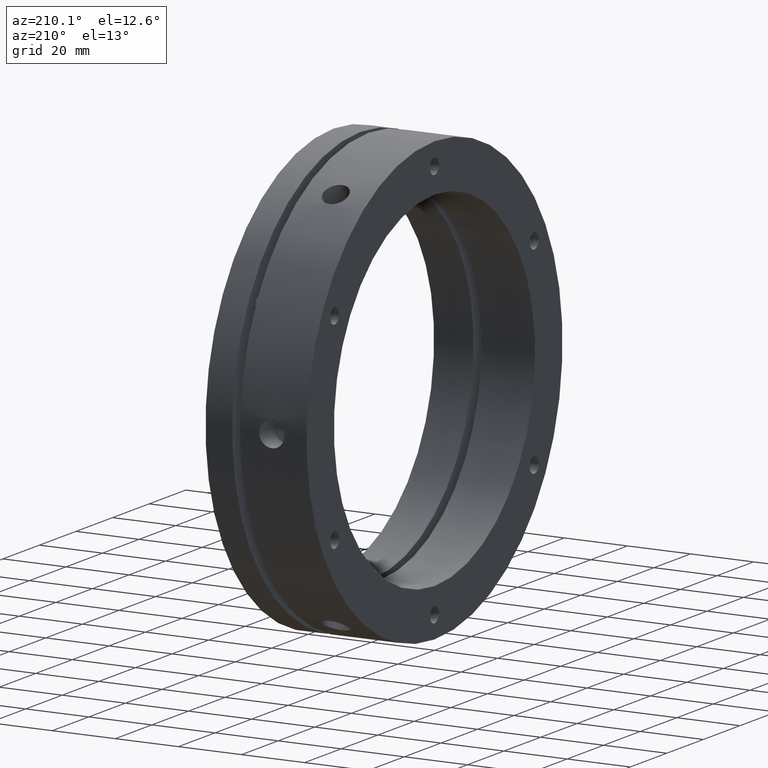
[diagram: clean part render]
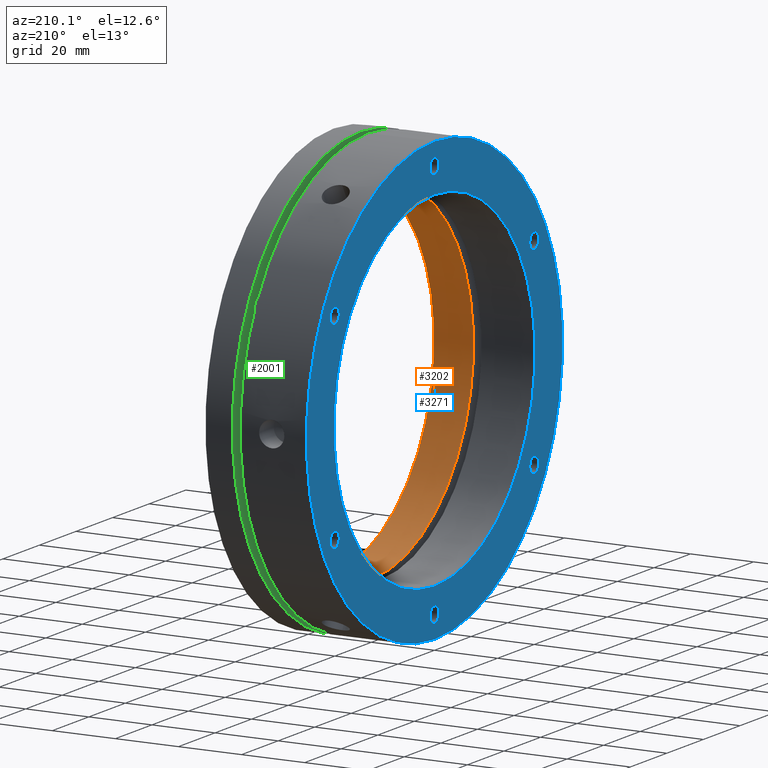
[diagram: same view with three faces highlighted in distinct colors, each labeled with its STEP entity id]
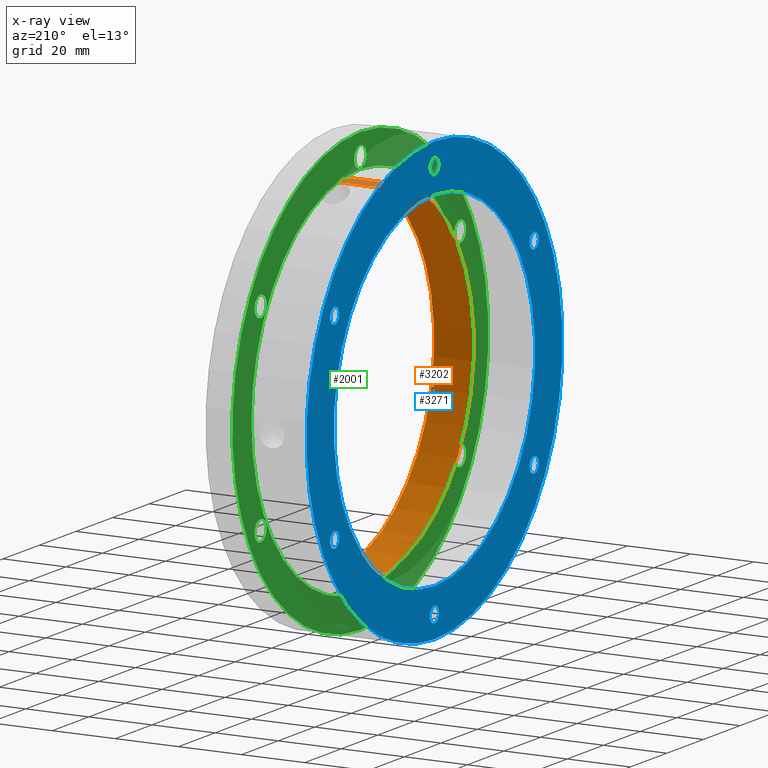
[diagram: x-ray of the same camera — body ghosted, the three highlighted faces saturated]
A machine part, auxiliary view with three faces highlighted in distinct colors.
The next image is the same camera in x-ray (body ghosted, the three faces saturated) — at least one of them is partly hidden behind the body in this view.
Their STEP definitions:

[orange] entity #3202 — the highlighted cylindrical surface (partial cylindrical patch) has radius 55 mm, axis along (1, 0, 0).
#137 = EDGE_LOOP ( 'NONE', ( #1511, #1510, #1509, #1508 ) ) ;
#521 = AXIS2_PLACEMENT_3D ( 'NONE', #4110, #4108, #4106 ) ;
#780 = AXIS2_PLACEMENT_3D ( 'NONE', #2088, #2089, #2090 ) ;
#782 = AXIS2_PLACEMENT_3D ( 'NONE', #4627, #4628, #4629 ) ;
#839 = CIRCLE ( 'NONE', #780, 55.00000000000000000 ) ;
#918 = LINE ( 'NONE', #4620, #966 ) ;
#951 = VECTOR ( 'NONE', #4624, 1000.000000000000000 ) ;
#958 = CIRCLE ( 'NONE', #782, 55.00000000000000000 ) ;
#966 = VECTOR ( 'NONE', #4619, 1000.000000000000000 ) ;
#980 = LINE ( 'NONE', #4626, #951 ) ;
#1073 = CYLINDRICAL_SURFACE ( 'NONE', #521, 55.00000000000000000 ) ;
#1128 = FACE_OUTER_BOUND ( 'NONE', #137, .T. ) ;
#1508 = ORIENTED_EDGE ( 'NONE', *, *, #3500, .F. ) ;
#1509 = ORIENTED_EDGE ( 'NONE', *, *, #3499, .F. ) ;
#1510 = ORIENTED_EDGE ( 'NONE', *, *, #3498, .T. ) ;
#1511 = ORIENTED_EDGE ( 'NONE', *, *, #3576, .T. ) ;
#1783 = VERTEX_POINT ( 'NONE', #3829 ) ;
#1784 = VERTEX_POINT ( 'NONE', #3830 ) ;
#1788 = VERTEX_POINT ( 'NONE', #3834 ) ;
#1789 = VERTEX_POINT ( 'NONE', #3835 ) ;
#2088 = CARTESIAN_POINT ( 'NONE',  ( 19.49999999999999600, 0.0000000000000000000, 0.0000000000000000000 ) ) ;
#2089 = DIRECTION ( 'NONE',  ( -1.000000000000000000, -0.0000000000000000000, -0.0000000000000000000 ) ) ;
#2090 = DIRECTION ( 'NONE',  ( 0.0000000000000000000, 0.0000000000000000000, -1.000000000000000000 ) ) ;
#3202 = ADVANCED_FACE ( 'NONE', ( #1128 ), #1073, .F. ) ;
#3498 = EDGE_CURVE ( 'NONE', #1788, #1783, #918, .T. ) ;
#3499 = EDGE_CURVE ( 'NONE', #1784, #1783, #958, .T. ) ;
#3500 = EDGE_CURVE ( 'NONE', #1789, #1784, #980, .T. ) ;
#3576 = EDGE_CURVE ( 'NONE', #1789, #1788, #839, .T. ) ;
#3829 = CARTESIAN_POINT ( 'NONE',  ( 31.99999999999998600, 6.735557395310442600E-015, 55.00000000000000000 ) ) ;
#3830 = CARTESIAN_POINT ( 'NONE',  ( 31.99999999999998600, 0.0000000000000000000, -55.00000000000000000 ) ) ;
#3834 = CARTESIAN_POINT ( 'NONE',  ( 19.49999999999999600, 6.735557395310442600E-015, 55.00000000000000000 ) ) ;
#3835 = CARTESIAN_POINT ( 'NONE',  ( 19.49999999999999600, 0.0000000000000000000, -55.00000000000000000 ) ) ;
#4106 = DIRECTION ( 'NONE',  ( 0.0000000000000000000, 0.0000000000000000000, -1.000000000000000000 ) ) ;
#4108 = DIRECTION ( 'NONE',  ( 1.000000000000000000, 0.0000000000000000000, 0.0000000000000000000 ) ) ;
#4110 = CARTESIAN_POINT ( 'NONE',  ( 15.99999999999998600, 0.0000000000000000000, 0.0000000000000000000 ) ) ;
#4619 = DIRECTION ( 'NONE',  ( 1.000000000000000000, 0.0000000000000000000, 0.0000000000000000000 ) ) ;
#4620 = CARTESIAN_POINT ( 'NONE',  ( 15.99999999999998600, 6.735557395310442600E-015, 55.00000000000000000 ) ) ;
#4624 = DIRECTION ( 'NONE',  ( 1.000000000000000000, 0.0000000000000000000, 0.0000000000000000000 ) ) ;
#4626 = CARTESIAN_POINT ( 'NONE',  ( 15.99999999999998600, 0.0000000000000000000, -55.00000000000000000 ) ) ;
#4627 = CARTESIAN_POINT ( 'NONE',  ( 31.99999999999998600, 0.0000000000000000000, 0.0000000000000000000 ) ) ;
#4628 = DIRECTION ( 'NONE',  ( -1.000000000000000000, -0.0000000000000000000, -0.0000000000000000000 ) ) ;
#4629 = DIRECTION ( 'NONE',  ( 0.0000000000000000000, 0.0000000000000000000, -1.000000000000000000 ) ) ;

[blue] entity #3271 — the highlighted planar face has unit normal (-1, 0, 0).
#4 = EDGE_LOOP ( 'NONE', ( #1943, #1942 ) ) ;
#5 = EDGE_LOOP ( 'NONE', ( #1945, #1944 ) ) ;
#6 = EDGE_LOOP ( 'NONE', ( #1947, #1946 ) ) ;
#7 = EDGE_LOOP ( 'NONE', ( #1957, #1956 ) ) ;
#10 = EDGE_LOOP ( 'NONE', ( #1953, #1952 ) ) ;
#11 = EDGE_LOOP ( 'NONE', ( #1951, #1950 ) ) ;
#12 = EDGE_LOOP ( 'NONE', ( #1949, #1948 ) ) ;
#13 = EDGE_LOOP ( 'NONE', ( #1955, #1954 ) ) ;
#290 = CIRCLE ( 'NONE', #1415, 2.458500000000002600 ) ;
#309 = CIRCLE ( 'NONE', #1390, 2.458500000000002600 ) ;
#312 = FACE_BOUND ( 'NONE', #12, .T. ) ;
#313 = FACE_BOUND ( 'NONE', #5, .T. ) ;
#389 = CIRCLE ( 'NONE', #1408, 2.458499999999999000 ) ;
#394 = FACE_BOUND ( 'NONE', #13, .T. ) ;
#395 = FACE_OUTER_BOUND ( 'NONE', #4, .T. ) ;
#409 = FACE_BOUND ( 'NONE', #7, .T. ) ;
#411 = CIRCLE ( 'NONE', #1404, 2.458500000000002600 ) ;
#412 = CIRCLE ( 'NONE', #1398, 2.458499999999999000 ) ;
#417 = FACE_BOUND ( 'NONE', #10, .T. ) ;
#425 = FACE_BOUND ( 'NONE', #6, .T. ) ;
#433 = FACE_BOUND ( 'NONE', #11, .T. ) ;
#700 = AXIS2_PLACEMENT_3D ( 'NONE', #2615, #2616, #2617 ) ;
#715 = AXIS2_PLACEMENT_3D ( 'NONE', #2324, #2325, #2326 ) ;
#716 = AXIS2_PLACEMENT_3D ( 'NONE', #2320, #2321, #2322 ) ;
#717 = AXIS2_PLACEMENT_3D ( 'NONE', #2316, #2317, #2318 ) ;
#718 = AXIS2_PLACEMENT_3D ( 'NONE', #2313, #2314, #2315 ) ;
#719 = AXIS2_PLACEMENT_3D ( 'NONE', #2310, #2311, #2312 ) ;
#720 = AXIS2_PLACEMENT_3D ( 'NONE', #2307, #2308, #2309 ) ;
#721 = AXIS2_PLACEMENT_3D ( 'NONE', #2304, #2305, #2306 ) ;
#722 = AXIS2_PLACEMENT_3D ( 'NONE', #2430, #2431, #2432 ) ;
#739 = AXIS2_PLACEMENT_3D ( 'NONE', #4583, #4584, #4585 ) ;
#967 = CIRCLE ( 'NONE', #739, 55.00000000000000000 ) ;
#1003 = CIRCLE ( 'NONE', #1354, 2.458500000000002600 ) ;
#1354 = AXIS2_PLACEMENT_3D ( 'NONE', #4568, #4569, #4570 ) ;
#1378 = AXIS2_PLACEMENT_3D ( 'NONE', #4320, #4322, #4329 ) ;
#1390 = AXIS2_PLACEMENT_3D ( 'NONE', #4519, #4520, #4521 ) ;
#1398 = AXIS2_PLACEMENT_3D ( 'NONE', #4497, #4498, #4499 ) ;
#1404 = AXIS2_PLACEMENT_3D ( 'NONE', #4487, #4488, #4489 ) ;
#1408 = AXIS2_PLACEMENT_3D ( 'NONE', #4477, #4478, #4479 ) ;
#1415 = AXIS2_PLACEMENT_3D ( 'NONE', #4467, #4468, #4469 ) ;
#1853 = VERTEX_POINT ( 'NONE', #3899 ) ;
#1854 = VERTEX_POINT ( 'NONE', #3900 ) ;
#1857 = VERTEX_POINT ( 'NONE', #3903 ) ;
#1858 = VERTEX_POINT ( 'NONE', #3904 ) ;
#1861 = VERTEX_POINT ( 'NONE', #3907 ) ;
#1862 = VERTEX_POINT ( 'NONE', #3908 ) ;
#1865 = VERTEX_POINT ( 'NONE', #3911 ) ;
#1866 = VERTEX_POINT ( 'NONE', #3912 ) ;
#1869 = VERTEX_POINT ( 'NONE', #3915 ) ;
#1870 = VERTEX_POINT ( 'NONE', #3916 ) ;
#1873 = VERTEX_POINT ( 'NONE', #3919 ) ;
#1874 = VERTEX_POINT ( 'NONE', #3920 ) ;
#1879 = VERTEX_POINT ( 'NONE', #3925 ) ;
#1900 = VERTEX_POINT ( 'NONE', #3946 ) ;
#1901 = VERTEX_POINT ( 'NONE', #3947 ) ;
#1903 = VERTEX_POINT ( 'NONE', #3949 ) ;
#1942 = ORIENTED_EDGE ( 'NONE', *, *, #3637, .F. ) ;
#1943 = ORIENTED_EDGE ( 'NONE', *, *, #3674, .F. ) ;
#1944 = ORIENTED_EDGE ( 'NONE', *, *, #3626, .T. ) ;
#1945 = ORIENTED_EDGE ( 'NONE', *, *, #3436, .T. ) ;
#1946 = ORIENTED_EDGE ( 'NONE', *, *, #3627, .T. ) ;
#1947 = ORIENTED_EDGE ( 'NONE', *, *, #3440, .T. ) ;
#1948 = ORIENTED_EDGE ( 'NONE', *, *, #3628, .T. ) ;
#1949 = ORIENTED_EDGE ( 'NONE', *, *, #3444, .T. ) ;
#1950 = ORIENTED_EDGE ( 'NONE', *, *, #3629, .T. ) ;
#1951 = ORIENTED_EDGE ( 'NONE', *, *, #3448, .T. ) ;
#1952 = ORIENTED_EDGE ( 'NONE', *, *, #3630, .T. ) ;
#1953 = ORIENTED_EDGE ( 'NONE', *, *, #3456, .T. ) ;
#1954 = ORIENTED_EDGE ( 'NONE', *, *, #3631, .T. ) ;
#1955 = ORIENTED_EDGE ( 'NONE', *, *, #3476, .T. ) ;
#1956 = ORIENTED_EDGE ( 'NONE', *, *, #3482, .T. ) ;
#1957 = ORIENTED_EDGE ( 'NONE', *, *, #3632, .T. ) ;
#2304 = CARTESIAN_POINT ( 'NONE',  ( -1.908195823574487800E-014, 54.55960043841969300, 31.49999999999997200 ) ) ;
#2305 = DIRECTION ( 'NONE',  ( 1.000000000000000000, -0.0000000000000000000, -0.0000000000000000000 ) ) ;
#2306 = DIRECTION ( 'NONE',  ( 0.0000000000000000000, 0.0000000000000000000, 1.000000000000000000 ) ) ;
#2307 = CARTESIAN_POINT ( 'NONE',  ( -1.908195823574487800E-014, 54.55960043841965800, -31.50000000000005000 ) ) ;
#2308 = DIRECTION ( 'NONE',  ( 1.000000000000000000, -0.0000000000000000000, -0.0000000000000000000 ) ) ;
#2309 = DIRECTION ( 'NONE',  ( 0.0000000000000000000, 0.0000000000000000000, 1.000000000000000000 ) ) ;
#2310 = CARTESIAN_POINT ( 'NONE',  ( -1.908195823574487800E-014, -8.881783999999999800E-015, -63.00000000000004300 ) ) ;
#2311 = DIRECTION ( 'NONE',  ( 1.000000000000000000, -0.0000000000000000000, -0.0000000000000000000 ) ) ;
#2312 = DIRECTION ( 'NONE',  ( 0.0000000000000000000, 0.0000000000000000000, 1.000000000000000000 ) ) ;
#2313 = CARTESIAN_POINT ( 'NONE',  ( -1.908195823574487800E-014, -54.55960043841967900, -31.49999999999999300 ) ) ;
#2314 = DIRECTION ( 'NONE',  ( 1.000000000000000000, -0.0000000000000000000, -0.0000000000000000000 ) ) ;
#2315 = DIRECTION ( 'NONE',  ( 0.0000000000000000000, 0.0000000000000000000, 1.000000000000000000 ) ) ;
#2316 = CARTESIAN_POINT ( 'NONE',  ( -1.908195823574487800E-014, -54.55960043841966500, 31.50000000000002800 ) ) ;
#2317 = DIRECTION ( 'NONE',  ( 1.000000000000000000, -0.0000000000000000000, -0.0000000000000000000 ) ) ;
#2318 = DIRECTION ( 'NONE',  ( 0.0000000000000000000, 0.0000000000000000000, 1.000000000000000000 ) ) ;
#2320 = CARTESIAN_POINT ( 'NONE',  ( -1.908195823574487800E-014, 0.0000000000000000000, 63.00000000000004300 ) ) ;
#2321 = DIRECTION ( 'NONE',  ( 1.000000000000000000, -0.0000000000000000000, -0.0000000000000000000 ) ) ;
#2322 = DIRECTION ( 'NONE',  ( 0.0000000000000000000, 0.0000000000000000000, 1.000000000000000000 ) ) ;
#2324 = CARTESIAN_POINT ( 'NONE',  ( -1.734723475976807100E-014, 0.0000000000000000000, 0.0000000000000000000 ) ) ;
#2325 = DIRECTION ( 'NONE',  ( 1.000000000000000000, 0.0000000000000000000, 0.0000000000000000000 ) ) ;
#2326 = DIRECTION ( 'NONE',  ( 0.0000000000000000000, 0.0000000000000000000, -1.000000000000000000 ) ) ;
#2430 = CARTESIAN_POINT ( 'NONE',  ( -2.081668171172168500E-014, 0.0000000000000000000, 0.0000000000000000000 ) ) ;
#2431 = DIRECTION ( 'NONE',  ( 1.000000000000000000, 0.0000000000000000000, 0.0000000000000000000 ) ) ;
#2432 = DIRECTION ( 'NONE',  ( 0.0000000000000000000, 0.0000000000000000000, -1.000000000000000000 ) ) ;
#2615 = CARTESIAN_POINT ( 'NONE',  ( -2.081668171172168500E-014, 0.0000000000000000000, 0.0000000000000000000 ) ) ;
#2616 = DIRECTION ( 'NONE',  ( 1.000000000000000000, 0.0000000000000000000, 0.0000000000000000000 ) ) ;
#2617 = DIRECTION ( 'NONE',  ( 0.0000000000000000000, 0.0000000000000000000, -1.000000000000000000 ) ) ;
#3271 = ADVANCED_FACE ( 'NONE', ( #409, #394, #417, #433, #312, #425, #313, #395 ), #4327, .T. ) ;
#3307 = CIRCLE ( 'NONE', #700, 70.00000000000000000 ) ;
#3364 = CIRCLE ( 'NONE', #722, 70.00000000000000000 ) ;
#3366 = CIRCLE ( 'NONE', #715, 55.00000000000000000 ) ;
#3367 = CIRCLE ( 'NONE', #716, 2.458500000000002600 ) ;
#3368 = CIRCLE ( 'NONE', #717, 2.458500000000002600 ) ;
#3369 = CIRCLE ( 'NONE', #718, 2.458499999999999000 ) ;
#3370 = CIRCLE ( 'NONE', #719, 2.458500000000002600 ) ;
#3371 = CIRCLE ( 'NONE', #720, 2.458499999999999000 ) ;
#3372 = CIRCLE ( 'NONE', #721, 2.458500000000002600 ) ;
#3436 = EDGE_CURVE ( 'NONE', #1854, #1853, #290, .T. ) ;
#3440 = EDGE_CURVE ( 'NONE', #1858, #1857, #389, .T. ) ;
#3444 = EDGE_CURVE ( 'NONE', #1862, #1861, #411, .T. ) ;
#3448 = EDGE_CURVE ( 'NONE', #1866, #1865, #412, .T. ) ;
#3456 = EDGE_CURVE ( 'NONE', #1870, #1869, #309, .T. ) ;
#3476 = EDGE_CURVE ( 'NONE', #1874, #1873, #1003, .T. ) ;
#3482 = EDGE_CURVE ( 'NONE', #1879, #1901, #967, .T. ) ;
#3626 = EDGE_CURVE ( 'NONE', #1853, #1854, #3372, .T. ) ;
#3627 = EDGE_CURVE ( 'NONE', #1857, #1858, #3371, .T. ) ;
#3628 = EDGE_CURVE ( 'NONE', #1861, #1862, #3370, .T. ) ;
#3629 = EDGE_CURVE ( 'NONE', #1865, #1866, #3369, .T. ) ;
#3630 = EDGE_CURVE ( 'NONE', #1869, #1870, #3368, .T. ) ;
#3631 = EDGE_CURVE ( 'NONE', #1873, #1874, #3367, .T. ) ;
#3632 = EDGE_CURVE ( 'NONE', #1901, #1879, #3366, .T. ) ;
#3637 = EDGE_CURVE ( 'NONE', #1900, #1903, #3364, .T. ) ;
#3674 = EDGE_CURVE ( 'NONE', #1903, #1900, #3307, .T. ) ;
#3899 = CARTESIAN_POINT ( 'NONE',  ( -1.908195823574487800E-014, 54.55960043841969300, 29.04149999999997100 ) ) ;
#3900 = CARTESIAN_POINT ( 'NONE',  ( -1.908195823574487800E-014, 54.55960043841969300, 33.95849999999997200 ) ) ;
#3903 = CARTESIAN_POINT ( 'NONE',  ( -1.908195823574487800E-014, 54.55960043841965800, -33.95850000000005100 ) ) ;
#3904 = CARTESIAN_POINT ( 'NONE',  ( -1.908195823574487800E-014, 54.55960043841965800, -29.04150000000004900 ) ) ;
#3907 = CARTESIAN_POINT ( 'NONE',  ( -1.908195823574487800E-014, -8.580704584429623500E-015, -65.45850000000004300 ) ) ;
#3908 = CARTESIAN_POINT ( 'NONE',  ( -1.908195823574487800E-014, -8.881783999999999800E-015, -60.54150000000004200 ) ) ;
#3911 = CARTESIAN_POINT ( 'NONE',  ( -1.908195823574487800E-014, -54.55960043841967900, -33.95849999999999400 ) ) ;
#3912 = CARTESIAN_POINT ( 'NONE',  ( -1.908195823574487800E-014, -54.55960043841967900, -29.04149999999999600 ) ) ;
#3915 = CARTESIAN_POINT ( 'NONE',  ( -1.908195823574487800E-014, -54.55960043841966500, 29.04150000000002800 ) ) ;
#3916 = CARTESIAN_POINT ( 'NONE',  ( -1.908195823574487800E-014, -54.55960043841966500, 33.95850000000002900 ) ) ;
#3919 = CARTESIAN_POINT ( 'NONE',  ( -1.908195823574487800E-014, 3.010794155703764200E-016, 60.54150000000004200 ) ) ;
#3920 = CARTESIAN_POINT ( 'NONE',  ( -1.908195823574487800E-014, 0.0000000000000000000, 65.45850000000004300 ) ) ;
#3925 = CARTESIAN_POINT ( 'NONE',  ( -1.734723475976807100E-014, 6.735557395310442600E-015, 55.00000000000000000 ) ) ;
#3946 = CARTESIAN_POINT ( 'NONE',  ( -2.081668171172168500E-014, 8.572527594031473000E-015, 70.00000000000000000 ) ) ;
#3947 = CARTESIAN_POINT ( 'NONE',  ( -1.734723475976807100E-014, 0.0000000000000000000, -55.00000000000000000 ) ) ;
#3949 = CARTESIAN_POINT ( 'NONE',  ( -2.081668171172168500E-014, 0.0000000000000000000, -70.00000000000000000 ) ) ;
#4320 = CARTESIAN_POINT ( 'NONE',  ( -1.907484999999999900E-014, 62.50000000000000000, 0.0000000000000000000 ) ) ;
#4322 = DIRECTION ( 'NONE',  ( -1.000000000000000000, 0.0000000000000000000, 0.0000000000000000000 ) ) ;
#4327 = PLANE ( 'NONE',  #1378 ) ;
#4329 = DIRECTION ( 'NONE',  ( 0.0000000000000000000, 0.0000000000000000000, 1.000000000000000000 ) ) ;
#4467 = CARTESIAN_POINT ( 'NONE',  ( -1.908195823574487800E-014, 54.55960043841969300, 31.49999999999997200 ) ) ;
#4468 = DIRECTION ( 'NONE',  ( 1.000000000000000000, -0.0000000000000000000, -0.0000000000000000000 ) ) ;
#4469 = DIRECTION ( 'NONE',  ( 0.0000000000000000000, 0.0000000000000000000, 1.000000000000000000 ) ) ;
#4477 = CARTESIAN_POINT ( 'NONE',  ( -1.908195823574487800E-014, 54.55960043841965800, -31.50000000000005000 ) ) ;
#4478 = DIRECTION ( 'NONE',  ( 1.000000000000000000, -0.0000000000000000000, -0.0000000000000000000 ) ) ;
#4479 = DIRECTION ( 'NONE',  ( 0.0000000000000000000, 0.0000000000000000000, 1.000000000000000000 ) ) ;
#4487 = CARTESIAN_POINT ( 'NONE',  ( -1.908195823574487800E-014, -8.881783999999999800E-015, -63.00000000000004300 ) ) ;
#4488 = DIRECTION ( 'NONE',  ( 1.000000000000000000, -0.0000000000000000000, -0.0000000000000000000 ) ) ;
#4489 = DIRECTION ( 'NONE',  ( 0.0000000000000000000, 0.0000000000000000000, 1.000000000000000000 ) ) ;
#4497 = CARTESIAN_POINT ( 'NONE',  ( -1.908195823574487800E-014, -54.55960043841967900, -31.49999999999999300 ) ) ;
#4498 = DIRECTION ( 'NONE',  ( 1.000000000000000000, -0.0000000000000000000, -0.0000000000000000000 ) ) ;
#4499 = DIRECTION ( 'NONE',  ( 0.0000000000000000000, 0.0000000000000000000, 1.000000000000000000 ) ) ;
#4519 = CARTESIAN_POINT ( 'NONE',  ( -1.908195823574487800E-014, -54.55960043841966500, 31.50000000000002800 ) ) ;
#4520 = DIRECTION ( 'NONE',  ( 1.000000000000000000, -0.0000000000000000000, -0.0000000000000000000 ) ) ;
#4521 = DIRECTION ( 'NONE',  ( 0.0000000000000000000, 0.0000000000000000000, 1.000000000000000000 ) ) ;
#4568 = CARTESIAN_POINT ( 'NONE',  ( -1.908195823574487800E-014, 0.0000000000000000000, 63.00000000000004300 ) ) ;
#4569 = DIRECTION ( 'NONE',  ( 1.000000000000000000, -0.0000000000000000000, -0.0000000000000000000 ) ) ;
#4570 = DIRECTION ( 'NONE',  ( 0.0000000000000000000, 0.0000000000000000000, 1.000000000000000000 ) ) ;
#4583 = CARTESIAN_POINT ( 'NONE',  ( -1.734723475976807100E-014, 0.0000000000000000000, 0.0000000000000000000 ) ) ;
#4584 = DIRECTION ( 'NONE',  ( 1.000000000000000000, 0.0000000000000000000, 0.0000000000000000000 ) ) ;
#4585 = DIRECTION ( 'NONE',  ( 0.0000000000000000000, 0.0000000000000000000, -1.000000000000000000 ) ) ;

[green] entity #2001 — the highlighted planar face has unit normal (1, 0, 0).
#53 = EDGE_LOOP ( 'NONE', ( #2995, #2994 ) ) ;
#54 = EDGE_LOOP ( 'NONE', ( #2997, #2996 ) ) ;
#55 = EDGE_LOOP ( 'NONE', ( #3005, #3004 ) ) ;
#57 = EDGE_LOOP ( 'NONE', ( #3003, #3002 ) ) ;
#58 = EDGE_LOOP ( 'NONE', ( #3009, #3008 ) ) ;
#59 = EDGE_LOOP ( 'NONE', ( #2999, #2998 ) ) ;
#60 = EDGE_LOOP ( 'NONE', ( #3001, #3000 ) ) ;
#61 = EDGE_LOOP ( 'NONE', ( #3007, #3006 ) ) ;
#271 = CIRCLE ( 'NONE', #1419, 59.50000000000000700 ) ;
#559 = AXIS2_PLACEMENT_3D ( 'NONE', #3991, #3989, #3994 ) ;
#745 = AXIS2_PLACEMENT_3D ( 'NONE', #2175, #2176, #2177 ) ;
#754 = AXIS2_PLACEMENT_3D ( 'NONE', #2148, #2149, #2150 ) ;
#755 = AXIS2_PLACEMENT_3D ( 'NONE', #2145, #2146, #2147 ) ;
#756 = AXIS2_PLACEMENT_3D ( 'NONE', #2142, #2143, #2144 ) ;
#757 = AXIS2_PLACEMENT_3D ( 'NONE', #2139, #2140, #2141 ) ;
#758 = AXIS2_PLACEMENT_3D ( 'NONE', #2136, #2137, #2138 ) ;
#759 = AXIS2_PLACEMENT_3D ( 'NONE', #4592, #4593, #4594 ) ;
#760 = AXIS2_PLACEMENT_3D ( 'NONE', #2133, #2134, #2135 ) ;
#761 = AXIS2_PLACEMENT_3D ( 'NONE', #2130, #2131, #2132 ) ;
#764 = AXIS2_PLACEMENT_3D ( 'NONE', #4602, #4603, #4604 ) ;
#771 = AXIS2_PLACEMENT_3D ( 'NONE', #4612, #4613, #4614 ) ;
#790 = AXIS2_PLACEMENT_3D ( 'NONE', #4621, #4622, #4623 ) ;
#801 = AXIS2_PLACEMENT_3D ( 'NONE', #2024, #2025, #2026 ) ;
#806 = AXIS2_PLACEMENT_3D ( 'NONE', #4663, #4664, #4665 ) ;
#811 = AXIS2_PLACEMENT_3D ( 'NONE', #4717, #4718, #4719 ) ;
#823 = CIRCLE ( 'NONE', #760, 3.249999999999999600 ) ;
#824 = CIRCLE ( 'NONE', #761, 70.00000000000000000 ) ;
#878 = CIRCLE ( 'NONE', #790, 3.250000000000002700 ) ;
#889 = CIRCLE ( 'NONE', #801, 70.00000000000000000 ) ;
#914 = CIRCLE ( 'NONE', #771, 3.250000000000002700 ) ;
#915 = CIRCLE ( 'NONE', #806, 3.250000000000002700 ) ;
#927 = CIRCLE ( 'NONE', #811, 3.249999999999999600 ) ;
#979 = CIRCLE ( 'NONE', #764, 3.249999999999999600 ) ;
#982 = CIRCLE ( 'NONE', #759, 3.250000000000002700 ) ;
#1053 = FACE_OUTER_BOUND ( 'NONE', #53, .T. ) ;
#1054 = FACE_BOUND ( 'NONE', #60, .T. ) ;
#1071 = FACE_BOUND ( 'NONE', #55, .T. ) ;
#1084 = FACE_BOUND ( 'NONE', #59, .T. ) ;
#1093 = FACE_BOUND ( 'NONE', #58, .T. ) ;
#1121 = FACE_BOUND ( 'NONE', #57, .T. ) ;
#1132 = FACE_BOUND ( 'NONE', #61, .T. ) ;
#1237 = FACE_BOUND ( 'NONE', #54, .T. ) ;
#1419 = AXIS2_PLACEMENT_3D ( 'NONE', #4440, #4441, #4442 ) ;
#1790 = VERTEX_POINT ( 'NONE', #3836 ) ;
#1793 = VERTEX_POINT ( 'NONE', #3839 ) ;
#1794 = VERTEX_POINT ( 'NONE', #3840 ) ;
#1797 = VERTEX_POINT ( 'NONE', #3843 ) ;
#1798 = VERTEX_POINT ( 'NONE', #3844 ) ;
#1801 = VERTEX_POINT ( 'NONE', #3847 ) ;
#1802 = VERTEX_POINT ( 'NONE', #3848 ) ;
#1805 = VERTEX_POINT ( 'NONE', #3851 ) ;
#1806 = VERTEX_POINT ( 'NONE', #3852 ) ;
#1809 = VERTEX_POINT ( 'NONE', #3855 ) ;
#1810 = VERTEX_POINT ( 'NONE', #3856 ) ;
#1813 = VERTEX_POINT ( 'NONE', #3859 ) ;
#1816 = VERTEX_POINT ( 'NONE', #3862 ) ;
#1817 = VERTEX_POINT ( 'NONE', #3863 ) ;
#1846 = VERTEX_POINT ( 'NONE', #3892 ) ;
#1852 = VERTEX_POINT ( 'NONE', #3898 ) ;
#2001 = ADVANCED_FACE ( 'NONE', ( #1093, #1132, #1071, #1121, #1054, #1084, #1237, #1053 ), #3992, .F. ) ;
#2024 = CARTESIAN_POINT ( 'NONE',  ( 23.49999999999998600, 0.0000000000000000000, 0.0000000000000000000 ) ) ;
#2025 = DIRECTION ( 'NONE',  ( 1.000000000000000000, 0.0000000000000000000, 0.0000000000000000000 ) ) ;
#2026 = DIRECTION ( 'NONE',  ( 0.0000000000000000000, 0.0000000000000000000, -1.000000000000000000 ) ) ;
#2130 = CARTESIAN_POINT ( 'NONE',  ( 23.49999999999998600, 0.0000000000000000000, 0.0000000000000000000 ) ) ;
#2131 = DIRECTION ( 'NONE',  ( 1.000000000000000000, 0.0000000000000000000, 0.0000000000000000000 ) ) ;
#2132 = DIRECTION ( 'NONE',  ( 0.0000000000000000000, 0.0000000000000000000, -1.000000000000000000 ) ) ;
#2133 = CARTESIAN_POINT ( 'NONE',  ( 23.49999999999998600, 54.55960043841969300, 31.49999999999997200 ) ) ;
#2134 = DIRECTION ( 'NONE',  ( -1.000000000000000000, -0.0000000000000000000, -0.0000000000000000000 ) ) ;
#2135 = DIRECTION ( 'NONE',  ( 0.0000000000000000000, 0.0000000000000000000, -1.000000000000000000 ) ) ;
#2136 = CARTESIAN_POINT ( 'NONE',  ( 23.49999999999998600, 54.55960043841965800, -31.50000000000005000 ) ) ;
#2137 = DIRECTION ( 'NONE',  ( -1.000000000000000000, -0.0000000000000000000, -0.0000000000000000000 ) ) ;
#2138 = DIRECTION ( 'NONE',  ( 0.0000000000000000000, 0.0000000000000000000, -1.000000000000000000 ) ) ;
#2139 = CARTESIAN_POINT ( 'NONE',  ( 23.49999999999998600, -8.881783999999999800E-015, -63.00000000000004300 ) ) ;
#2140 = DIRECTION ( 'NONE',  ( -1.000000000000000000, -0.0000000000000000000, -0.0000000000000000000 ) ) ;
#2141 = DIRECTION ( 'NONE',  ( 0.0000000000000000000, 0.0000000000000000000, -1.000000000000000000 ) ) ;
#2142 = CARTESIAN_POINT ( 'NONE',  ( 23.49999999999998600, -54.55960043841967900, -31.49999999999999300 ) ) ;
#2143 = DIRECTION ( 'NONE',  ( -1.000000000000000000, -0.0000000000000000000, -0.0000000000000000000 ) ) ;
#2144 = DIRECTION ( 'NONE',  ( 0.0000000000000000000, 0.0000000000000000000, -1.000000000000000000 ) ) ;
#2145 = CARTESIAN_POINT ( 'NONE',  ( 23.49999999999998600, -54.55960043841966500, 31.50000000000002800 ) ) ;
#2146 = DIRECTION ( 'NONE',  ( -1.000000000000000000, -0.0000000000000000000, -0.0000000000000000000 ) ) ;
#2147 = DIRECTION ( 'NONE',  ( 0.0000000000000000000, 0.0000000000000000000, -1.000000000000000000 ) ) ;
#2148 = CARTESIAN_POINT ( 'NONE',  ( 23.49999999999998600, 0.0000000000000000000, 63.00000000000004300 ) ) ;
#2149 = DIRECTION ( 'NONE',  ( -1.000000000000000000, -0.0000000000000000000, -0.0000000000000000000 ) ) ;
#2150 = DIRECTION ( 'NONE',  ( 0.0000000000000000000, 0.0000000000000000000, -1.000000000000000000 ) ) ;
#2175 = CARTESIAN_POINT ( 'NONE',  ( 23.49999999999998600, 0.0000000000000000000, 0.0000000000000000000 ) ) ;
#2176 = DIRECTION ( 'NONE',  ( -1.000000000000000000, 0.0000000000000000000, 0.0000000000000000000 ) ) ;
#2177 = DIRECTION ( 'NONE',  ( 0.0000000000000000000, 0.0000000000000000000, 1.000000000000000000 ) ) ;
#2994 = ORIENTED_EDGE ( 'NONE', *, *, #3590, .F. ) ;
#2995 = ORIENTED_EDGE ( 'NONE', *, *, #3549, .F. ) ;
#2996 = ORIENTED_EDGE ( 'NONE', *, *, #3591, .F. ) ;
#2997 = ORIENTED_EDGE ( 'NONE', *, *, #3533, .F. ) ;
#2998 = ORIENTED_EDGE ( 'NONE', *, *, #3592, .F. ) ;
#2999 = ORIENTED_EDGE ( 'NONE', *, *, #3513, .F. ) ;
#3000 = ORIENTED_EDGE ( 'NONE', *, *, #3593, .F. ) ;
#3001 = ORIENTED_EDGE ( 'NONE', *, *, #3497, .F. ) ;
#3002 = ORIENTED_EDGE ( 'NONE', *, *, #3594, .F. ) ;
#3003 = ORIENTED_EDGE ( 'NONE', *, *, #3493, .F. ) ;
#3004 = ORIENTED_EDGE ( 'NONE', *, *, #3595, .F. ) ;
#3005 = ORIENTED_EDGE ( 'NONE', *, *, #3489, .F. ) ;
#3006 = ORIENTED_EDGE ( 'NONE', *, *, #3596, .F. ) ;
#3007 = ORIENTED_EDGE ( 'NONE', *, *, #3485, .F. ) ;
#3008 = ORIENTED_EDGE ( 'NONE', *, *, #3605, .F. ) ;
#3009 = ORIENTED_EDGE ( 'NONE', *, *, #3422, .F. ) ;
#3334 = CIRCLE ( 'NONE', #757, 3.250000000000002700 ) ;
#3395 = CIRCLE ( 'NONE', #745, 59.50000000000000700 ) ;
#3404 = CIRCLE ( 'NONE', #754, 3.250000000000002700 ) ;
#3405 = CIRCLE ( 'NONE', #755, 3.249999999999999600 ) ;
#3406 = CIRCLE ( 'NONE', #756, 3.250000000000002700 ) ;
#3407 = CIRCLE ( 'NONE', #758, 3.250000000000002700 ) ;
#3422 = EDGE_CURVE ( 'NONE', #1846, #1852, #271, .T. ) ;
#3485 = EDGE_CURVE ( 'NONE', #1817, #1816, #982, .T. ) ;
#3489 = EDGE_CURVE ( 'NONE', #1813, #1810, #979, .T. ) ;
#3493 = EDGE_CURVE ( 'NONE', #1809, #1806, #914, .T. ) ;
#3497 = EDGE_CURVE ( 'NONE', #1805, #1802, #878, .T. ) ;
#3513 = EDGE_CURVE ( 'NONE', #1801, #1798, #915, .T. ) ;
#3533 = EDGE_CURVE ( 'NONE', #1797, #1794, #927, .T. ) ;
#3549 = EDGE_CURVE ( 'NONE', #1793, #1790, #889, .T. ) ;
#3590 = EDGE_CURVE ( 'NONE', #1790, #1793, #824, .T. ) ;
#3591 = EDGE_CURVE ( 'NONE', #1794, #1797, #823, .T. ) ;
#3592 = EDGE_CURVE ( 'NONE', #1798, #1801, #3407, .T. ) ;
#3593 = EDGE_CURVE ( 'NONE', #1802, #1805, #3334, .T. ) ;
#3594 = EDGE_CURVE ( 'NONE', #1806, #1809, #3406, .T. ) ;
#3595 = EDGE_CURVE ( 'NONE', #1810, #1813, #3405, .T. ) ;
#3596 = EDGE_CURVE ( 'NONE', #1816, #1817, #3404, .T. ) ;
#3605 = EDGE_CURVE ( 'NONE', #1852, #1846, #3395, .T. ) ;
#3836 = CARTESIAN_POINT ( 'NONE',  ( 23.49999999999998600, 8.572527594031473000E-015, 70.00000000000000000 ) ) ;
#3839 = CARTESIAN_POINT ( 'NONE',  ( 23.49999999999998600, 0.0000000000000000000, -70.00000000000000000 ) ) ;
#3840 = CARTESIAN_POINT ( 'NONE',  ( 23.49999999999998600, 54.55960043841969300, 34.74999999999997900 ) ) ;
#3843 = CARTESIAN_POINT ( 'NONE',  ( 23.49999999999998600, 54.55960043841969300, 28.24999999999997200 ) ) ;
#3844 = CARTESIAN_POINT ( 'NONE',  ( 23.49999999999998600, 54.55960043841965800, -28.25000000000005000 ) ) ;
#3847 = CARTESIAN_POINT ( 'NONE',  ( 23.49999999999998600, 54.55960043841965800, -34.75000000000005000 ) ) ;
#3848 = CARTESIAN_POINT ( 'NONE',  ( 23.49999999999998600, -8.483773790277109000E-015, -59.75000000000004300 ) ) ;
#3851 = CARTESIAN_POINT ( 'NONE',  ( 23.49999999999998600, -8.881783999999999800E-015, -66.25000000000004300 ) ) ;
#3852 = CARTESIAN_POINT ( 'NONE',  ( 23.49999999999998600, -54.55960043841967900, -28.24999999999999300 ) ) ;
#3855 = CARTESIAN_POINT ( 'NONE',  ( 23.49999999999998600, -54.55960043841967900, -34.74999999999999300 ) ) ;
#3856 = CARTESIAN_POINT ( 'NONE',  ( 23.49999999999998600, -54.55960043841966500, 34.75000000000002800 ) ) ;
#3859 = CARTESIAN_POINT ( 'NONE',  ( 23.49999999999998600, -54.55960043841966500, 28.25000000000002800 ) ) ;
#3862 = CARTESIAN_POINT ( 'NONE',  ( 23.49999999999998600, 3.980102097228895300E-016, 66.25000000000004300 ) ) ;
#3863 = CARTESIAN_POINT ( 'NONE',  ( 23.49999999999998600, 0.0000000000000000000, 59.75000000000004300 ) ) ;
#3892 = CARTESIAN_POINT ( 'NONE',  ( 23.49999999999998600, 0.0000000000000000000, 59.50000000000000700 ) ) ;
#3898 = CARTESIAN_POINT ( 'NONE',  ( 23.49999999999998600, 7.286648454926752400E-015, -59.50000000000000700 ) ) ;
#3989 = DIRECTION ( 'NONE',  ( 1.000000000000000000, -0.0000000000000000000, 0.0000000000000000000 ) ) ;
#3991 = CARTESIAN_POINT ( 'NONE',  ( 23.49999999999998600, 64.75000000000000000, 0.0000000000000000000 ) ) ;
#3992 = PLANE ( 'NONE',  #559 ) ;
#3994 = DIRECTION ( 'NONE',  ( 0.0000000000000000000, 0.0000000000000000000, -1.000000000000000000 ) ) ;
#4440 = CARTESIAN_POINT ( 'NONE',  ( 23.49999999999998600, 0.0000000000000000000, 0.0000000000000000000 ) ) ;
#4441 = DIRECTION ( 'NONE',  ( -1.000000000000000000, 0.0000000000000000000, 0.0000000000000000000 ) ) ;
#4442 = DIRECTION ( 'NONE',  ( 0.0000000000000000000, 0.0000000000000000000, 1.000000000000000000 ) ) ;
#4592 = CARTESIAN_POINT ( 'NONE',  ( 23.49999999999998600, 0.0000000000000000000, 63.00000000000004300 ) ) ;
#4593 = DIRECTION ( 'NONE',  ( -1.000000000000000000, -0.0000000000000000000, -0.0000000000000000000 ) ) ;
#4594 = DIRECTION ( 'NONE',  ( 0.0000000000000000000, 0.0000000000000000000, -1.000000000000000000 ) ) ;
#4602 = CARTESIAN_POINT ( 'NONE',  ( 23.49999999999998600, -54.55960043841966500, 31.50000000000002800 ) ) ;
#4603 = DIRECTION ( 'NONE',  ( -1.000000000000000000, -0.0000000000000000000, -0.0000000000000000000 ) ) ;
#4604 = DIRECTION ( 'NONE',  ( 0.0000000000000000000, 0.0000000000000000000, -1.000000000000000000 ) ) ;
#4612 = CARTESIAN_POINT ( 'NONE',  ( 23.49999999999998600, -54.55960043841967900, -31.49999999999999300 ) ) ;
#4613 = DIRECTION ( 'NONE',  ( -1.000000000000000000, -0.0000000000000000000, -0.0000000000000000000 ) ) ;
#4614 = DIRECTION ( 'NONE',  ( 0.0000000000000000000, 0.0000000000000000000, -1.000000000000000000 ) ) ;
#4621 = CARTESIAN_POINT ( 'NONE',  ( 23.49999999999998600, -8.881783999999999800E-015, -63.00000000000004300 ) ) ;
#4622 = DIRECTION ( 'NONE',  ( -1.000000000000000000, -0.0000000000000000000, -0.0000000000000000000 ) ) ;
#4623 = DIRECTION ( 'NONE',  ( 0.0000000000000000000, 0.0000000000000000000, -1.000000000000000000 ) ) ;
#4663 = CARTESIAN_POINT ( 'NONE',  ( 23.49999999999998600, 54.55960043841965800, -31.50000000000005000 ) ) ;
#4664 = DIRECTION ( 'NONE',  ( -1.000000000000000000, -0.0000000000000000000, -0.0000000000000000000 ) ) ;
#4665 = DIRECTION ( 'NONE',  ( 0.0000000000000000000, 0.0000000000000000000, -1.000000000000000000 ) ) ;
#4717 = CARTESIAN_POINT ( 'NONE',  ( 23.49999999999998600, 54.55960043841969300, 31.49999999999997200 ) ) ;
#4718 = DIRECTION ( 'NONE',  ( -1.000000000000000000, -0.0000000000000000000, -0.0000000000000000000 ) ) ;
#4719 = DIRECTION ( 'NONE',  ( 0.0000000000000000000, 0.0000000000000000000, -1.000000000000000000 ) ) ;